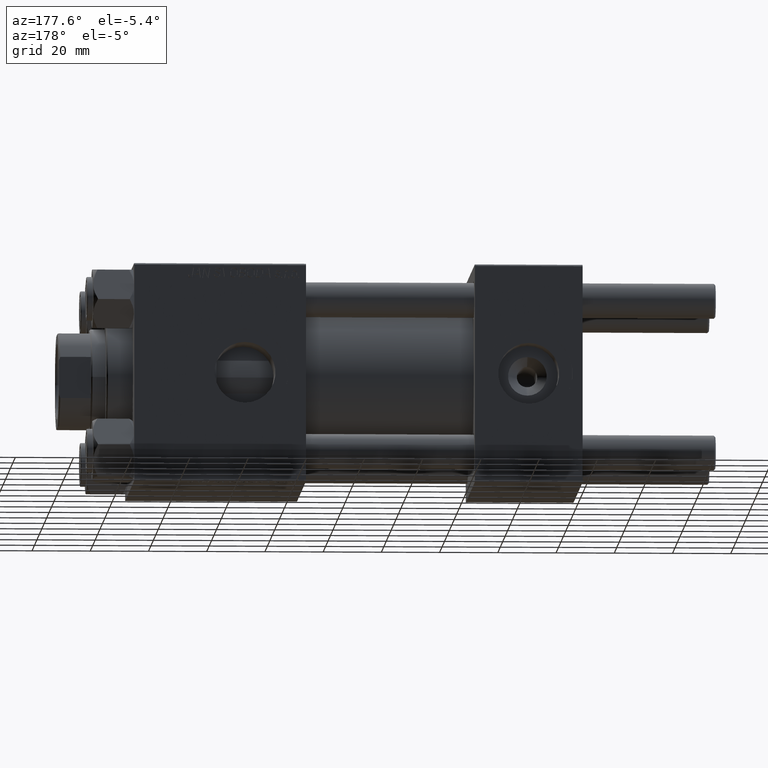
[diagram: clean part render]
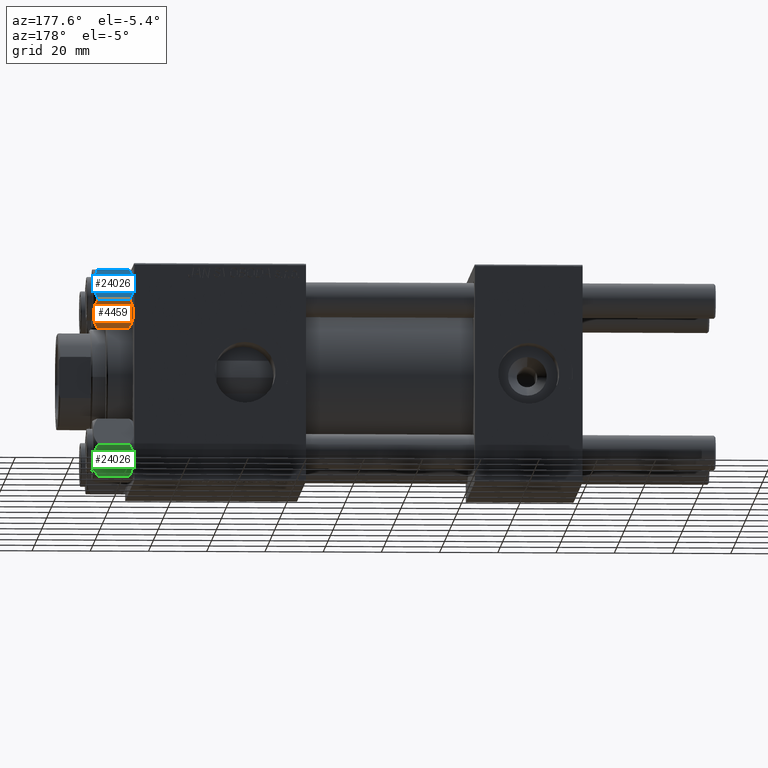
[diagram: same view with three faces highlighted in distinct colors, each labeled with its STEP entity id]
A machine part, auxiliary view with three faces highlighted in distinct colors.
Their STEP definitions:

[orange] entity #4459 — the highlighted planar face has unit normal (-0, -0.8135, 0.5816).
#25 = CARTESIAN_POINT ( 'NONE',  ( 8.714999999999994529, 5.031607595987588333, 0.000000000000000000 ) ) ;
#51 = CARTESIAN_POINT ( 'NONE',  ( 7.713000053756304375, 6.767122412062953174, -0.1545239700039927888 ) ) ;
#658 = CARTESIAN_POINT ( 'NONE',  ( 10.69859855102500923, 1.595914123792269601, -0.7141438259524722776 ) ) ;
#1017 = EDGE_CURVE ( 'NONE', #31180, #8453, #45835, .T. ) ;
#1173 = CARTESIAN_POINT ( 'NONE',  ( 11.61999999999999922, 7.247075248837498561E-15, -1.556784808024820999 ) ) ;
#1996 = B_SPLINE_CURVE_WITH_KNOTS ( 'NONE', 3,
 ( #1173, #17159, #658, #24233, #49117, #4339, #45177, #4603 ),
 .UNSPECIFIED., .F., .F.,
 ( 4, 2, 2, 4 ),
 ( 2.544312114899127210E-07, 0.003011550106433536454, 0.004517197944044559245, 0.006022845781655580301 ),
 .UNSPECIFIED. ) ;
#2161 = CARTESIAN_POINT ( 'NONE',  ( 11.61999999999999922, 7.017202701192663836E-15, -14.00000000000000000 ) ) ;
#2294 = VERTEX_POINT ( 'NONE', #25 ) ;
#3051 = EDGE_CURVE ( 'NONE', #30136, #45771, #33857, .T. ) ;
#3091 = CARTESIAN_POINT ( 'NONE',  ( 7.455303369716803630, 7.213466161761386886, -13.69973261901325223 ) ) ;
#3348 = CARTESIAN_POINT ( 'NONE',  ( 8.714999999999994529, 5.031607595987588333, -14.00000000000000000 ) ) ;
#3477 = CARTESIAN_POINT ( 'NONE',  ( 5.809999999999995168, 10.06321519197518377, -14.00000000000000000 ) ) ;
#4339 = CARTESIAN_POINT ( 'NONE',  ( 9.227666995912100489, 4.143642311704127223, -0.03994118060691630862 ) ) ;
#4459 = ADVANCED_FACE ( 'NONE', ( #31493 ), #47723, .F. ) ;
#4603 = CARTESIAN_POINT ( 'NONE',  ( 8.714999999999994529, 5.031607595987588333, 0.000000000000000000 ) ) ;
#4683 = CARTESIAN_POINT ( 'NONE',  ( 11.61999999999999922, 7.247075248837498561E-15, -1.556784808024820999 ) ) ;
#5190 = ORIENTED_EDGE ( 'NONE', *, *, #3051, .F. ) ;
#6502 = ORIENTED_EDGE ( 'NONE', *, *, #1017, .T. ) ;
#6629 = DIRECTION ( 'NONE',  ( -0.000000000000000000, -0.000000000000000000, 1.000000000000000000 ) ) ;
#7585 = EDGE_LOOP ( 'NONE', ( #37846, #6502, #35011, #10708, #5190, #36015 ) ) ;
#7922 = DIRECTION ( 'NONE',  ( 0.5000000000000002220, -0.8660254037844384856, 0.000000000000000000 ) ) ;
#8453 = VERTEX_POINT ( 'NONE', #29291 ) ;
#8782 = EDGE_CURVE ( 'NONE', #2294, #8453, #25719, .T. ) ;
#10708 = ORIENTED_EDGE ( 'NONE', *, *, #37559, .F. ) ;
#13301 = CARTESIAN_POINT ( 'NONE',  ( 8.714999999999994529, 5.031607595987588333, -14.00000000000000000 ) ) ;
#13802 = CARTESIAN_POINT ( 'NONE',  ( 9.220295946303428636, 4.156409344131457573, -13.99999999999999822 ) ) ;
#15298 = CARTESIAN_POINT ( 'NONE',  ( 11.61999999999999922, 7.035126978385350964E-15, -12.44321519197517922 ) ) ;
#17159 = CARTESIAN_POINT ( 'NONE',  ( 11.16445427487471775, 0.7890283410878045078, -1.101239082899540200 ) ) ;
#17801 = CARTESIAN_POINT ( 'NONE',  ( 5.809999999999995168, 10.06321519197518377, -14.00000000000000000 ) ) ;
#19020 = CARTESIAN_POINT ( 'NONE',  ( 8.714999999999994529, 5.031607595987588333, -14.00000000000000000 ) ) ;
#19047 = CARTESIAN_POINT ( 'NONE',  ( 8.460569896449612770, 5.472293462311864864, -13.99999999999998934 ) ) ;
#21400 = CARTESIAN_POINT ( 'NONE',  ( 9.716999946243698005, 3.296092779912230153, -13.84547602999601068 ) ) ;
#23250 = CARTESIAN_POINT ( 'NONE',  ( 8.202333004087895674, 5.919572880271055659, -13.96005881939308502 ) ) ;
#24215 = VERTEX_POINT ( 'NONE', #19020 ) ;
#24233 = CARTESIAN_POINT ( 'NONE',  ( 9.974696630283194310, 2.849749030213796885, -0.3002673809867452137 ) ) ;
#25324 = CARTESIAN_POINT ( 'NONE',  ( 11.16498164529021864, 0.7881149087337363524, -12.89823354668503974 ) ) ;
#25719 = B_SPLINE_CURVE_WITH_KNOTS ( 'NONE', 3,
 ( #51670, #32005, #51, #38844, #27059, #47727 ),
 .UNSPECIFIED., .F., .F.,
 ( 4, 2, 4 ),
 ( 0.006022845781655580301, 0.009013049135303631554, 0.01200325248895168020 ),
 .UNSPECIFIED. ) ;
#26107 = VECTOR ( 'NONE', #45578, 1000.000000000000000 ) ;
#26220 = CARTESIAN_POINT ( 'NONE',  ( 5.809999999999994280, 10.06321519197518377, -12.44321519197517389 ) ) ;
#26592 = EDGE_CURVE ( 'NONE', #31180, #24215, #42378, .T. ) ;
#27059 = CARTESIAN_POINT ( 'NONE',  ( 6.265018354709772197, 9.275100283241449972, -1.101766453314962924 ) ) ;
#28733 = EDGE_CURVE ( 'NONE', #24215, #30136, #45888, .T. ) ;
#29291 = CARTESIAN_POINT ( 'NONE',  ( 5.809999999999995168, 10.06321519197518377, -1.556784808024826106 ) ) ;
#30136 = VERTEX_POINT ( 'NONE', #15298 ) ;
#30844 = CARTESIAN_POINT ( 'NONE',  ( 7.700834831386342394, 6.788193195293096949, -13.80960203119265017 ) ) ;
#31180 = VERTEX_POINT ( 'NONE', #26220 ) ;
#31493 = FACE_OUTER_BOUND ( 'NONE', #7585, .T. ) ;
#32005 = CARTESIAN_POINT ( 'NONE',  ( 8.209704053696574633, 5.906805847843728863, -5.031375706690544014E-15 ) ) ;
#32934 = CARTESIAN_POINT ( 'NONE',  ( 10.69662495661650148, 1.599332489581338113, -13.28854452935654074 ) ) ;
#33694 = CARTESIAN_POINT ( 'NONE',  ( 11.61999999999999922, 7.035126978385350964E-15, -12.44321519197517922 ) ) ;
#33857 = LINE ( 'NONE', #2161, #36180 ) ;
#35011 = ORIENTED_EDGE ( 'NONE', *, *, #8782, .F. ) ;
#35426 = DIRECTION ( 'NONE',  ( -0.8660254037844385966, -0.5000000000000003331, 0.000000000000000000 ) ) ;
#36015 = ORIENTED_EDGE ( 'NONE', *, *, #28733, .F. ) ;
#36180 = VECTOR ( 'NONE', #6629, 1000.000000000000000 ) ;
#37559 = EDGE_CURVE ( 'NONE', #45771, #2294, #1996, .T. ) ;
#37846 = ORIENTED_EDGE ( 'NONE', *, *, #26592, .F. ) ;
#38844 = CARTESIAN_POINT ( 'NONE',  ( 6.733375043383494685, 8.463882702393844326, -0.7114554706434600417 ) ) ;
#39728 = CARTESIAN_POINT ( 'NONE',  ( 6.731401448974984270, 8.467301068182921497, -13.28585617404752384 ) ) ;
#42378 = B_SPLINE_CURVE_WITH_KNOTS ( 'NONE', 3,
 ( #47074, #43407, #39728, #3091, #30844, #23250, #19047, #3348 ),
 .UNSPECIFIED., .F., .F.,
 ( 4, 2, 2, 4 ),
 ( 2.544312114902182352E-07, 0.003011550106433543827, 0.004517197944044569653, 0.006022845781655595046 ),
 .UNSPECIFIED. ) ;
#43407 = CARTESIAN_POINT ( 'NONE',  ( 6.265545725125281074, 9.274186850887387479, -12.89876091710045891 ) ) ;
#43643 = AXIS2_PLACEMENT_3D ( 'NONE', #3477, #35426, #7922 ) ;
#45177 = CARTESIAN_POINT ( 'NONE',  ( 8.969430103550385169, 4.590921729663316242, -5.293955920339376330E-15 ) ) ;
#45578 = DIRECTION ( 'NONE',  ( -0.000000000000000000, -0.000000000000000000, 1.000000000000000000 ) ) ;
#45771 = VERTEX_POINT ( 'NONE', #4683 ) ;
#45835 = LINE ( 'NONE', #17801, #26107 ) ;
#45888 = B_SPLINE_CURVE_WITH_KNOTS ( 'NONE', 3,
 ( #13301, #13802, #21400, #32934, #25324, #33694 ),
 .UNSPECIFIED., .F., .F.,
 ( 4, 2, 4 ),
 ( 0.006022845781655595046, 0.009013049135303638493, 0.01200325248895168194 ),
 .UNSPECIFIED. ) ;
#47074 = CARTESIAN_POINT ( 'NONE',  ( 5.809999999999994280, 10.06321519197518377, -12.44321519197517389 ) ) ;
#47723 = PLANE ( 'NONE',  #43643 ) ;
#47727 = CARTESIAN_POINT ( 'NONE',  ( 5.809999999999995168, 10.06321519197518377, -1.556784808024826106 ) ) ;
#49117 = CARTESIAN_POINT ( 'NONE',  ( 9.729165168613654657, 3.275021996682086378, -0.1903979688073500487 ) ) ;
#51670 = CARTESIAN_POINT ( 'NONE',  ( 8.714999999999994529, 5.031607595987588333, 0.000000000000000000 ) ) ;

[blue] entity #24026 — the highlighted planar face has unit normal (-0, -0.9104, -0.4137).
#108 = ORIENTED_EDGE ( 'NONE', *, *, #51187, .T. ) ;
#723 = EDGE_CURVE ( 'NONE', #45106, #8109, #41818, .T. ) ;
#1017 = EDGE_CURVE ( 'NONE', #31180, #8453, #45835, .T. ) ;
#1743 = DIRECTION ( 'NONE',  ( 5.971509383741162381E-16, -1.000000000000000000, 0.000000000000000000 ) ) ;
#1910 = VERTEX_POINT ( 'NONE', #18192 ) ;
#2529 = CARTESIAN_POINT ( 'NONE',  ( 3.474497094393246055, 10.06321519197518199, -0.5726960901042849050 ) ) ;
#2951 = CARTESIAN_POINT ( 'NONE',  ( -3.958929922320423067, 10.06321519197517489, -13.25786014976459626 ) ) ;
#5374 = CARTESIAN_POINT ( 'NONE',  ( -5.810000000000004050, 10.06321519197517667, -12.44321519197517745 ) ) ;
#5428 = CARTESIAN_POINT ( 'NONE',  ( 3.958929922320414185, 10.06321519197518377, -0.7421398502354088489 ) ) ;
#5779 = ORIENTED_EDGE ( 'NONE', *, *, #31705, .F. ) ;
#6093 = CARTESIAN_POINT ( 'NONE',  ( -3.474497094393259378, 10.06321519197517844, -13.42730390989571809 ) ) ;
#6366 = CARTESIAN_POINT ( 'NONE',  ( -1.020132157807628781, 10.06321519197518022, -13.99999999999999467 ) ) ;
#6628 = CARTESIAN_POINT ( 'NONE',  ( -2.013954290287971460, 10.06321519197518022, -13.84298883202399466 ) ) ;
#7144 = CARTESIAN_POINT ( 'NONE',  ( -5.359707691559678189, 10.06321519197518022, -12.66836134619534171 ) ) ;
#7891 = EDGE_CURVE ( 'NONE', #8109, #31180, #34536, .T. ) ;
#8109 = VERTEX_POINT ( 'NONE', #46369 ) ;
#8453 = VERTEX_POINT ( 'NONE', #29291 ) ;
#9148 = CARTESIAN_POINT ( 'NONE',  ( -3.960942496020607884, 10.06321519197517844, -0.7115728323610508443 ) ) ;
#13801 = CARTESIAN_POINT ( 'NONE',  ( 4.900668367960789418, 10.06321519197518732, -1.121556683709783231 ) ) ;
#14070 = DIRECTION ( 'NONE',  ( 1.000000000000000000, 5.971509383741162381E-16, 0.000000000000000000 ) ) ;
#14750 = CARTESIAN_POINT ( 'NONE',  ( 1.018274738099081977, 10.06321519197517844, -13.95177257919928415 ) ) ;
#15777 = CARTESIAN_POINT ( 'NONE',  ( 2.508586450168036386, 10.06321519197518199, -13.70242473679676287 ) ) ;
#17001 = CARTESIAN_POINT ( 'NONE',  ( -6.009258394948640858E-15, 10.06321519197518022, 0.000000000000000000 ) ) ;
#17801 = CARTESIAN_POINT ( 'NONE',  ( 5.809999999999995168, 10.06321519197518377, -14.00000000000000000 ) ) ;
#18005 = EDGE_LOOP ( 'NONE', ( #42755, #108, #36836, #5779, #36454, #21269 ) ) ;
#18085 = VERTEX_POINT ( 'NONE', #25344 ) ;
#18192 = CARTESIAN_POINT ( 'NONE',  ( -5.810000000000003162, 10.06321519197517667, -1.556784808024824107 ) ) ;
#18492 = CARTESIAN_POINT ( 'NONE',  ( -6.009258394948640858E-15, 10.06321519197518022, 0.000000000000000000 ) ) ;
#18926 = CARTESIAN_POINT ( 'NONE',  ( -6.009258394948640858E-15, 10.06321519197518022, -14.00000000000000000 ) ) ;
#19986 = CARTESIAN_POINT ( 'NONE',  ( -5.810000000000003162, 10.06321519197517667, -14.00000000000000000 ) ) ;
#20397 = CARTESIAN_POINT ( 'NONE',  ( -0.2543996698847555971, 10.06321519197517844, -8.687169907040107433E-15 ) ) ;
#20925 = CARTESIAN_POINT ( 'NONE',  ( -2.508586450168046156, 10.06321519197518022, -0.2975752632032391820 ) ) ;
#21129 = B_SPLINE_CURVE_WITH_KNOTS ( 'NONE', 3,
 ( #17001, #20397, #48180, #40832, #36392, #20925, #9148, #24332, #48442 ),
 .UNSPECIFIED., .F., .F.,
 ( 4, 2, 1, 2, 4 ),
 ( 0.02074012592819901926, 0.02149589804477578317, 0.02225167016135255055, 0.02376321439450607836, 0.02678630286081313747 ),
 .UNSPECIFIED. ) ;
#21269 = ORIENTED_EDGE ( 'NONE', *, *, #7891, .F. ) ;
#23624 = CARTESIAN_POINT ( 'NONE',  ( 0.5112014849988854026, 10.06321519197518022, -13.99019602057108003 ) ) ;
#24026 = ADVANCED_FACE ( 'NONE', ( #33965 ), #50729, .F. ) ;
#24219 = VECTOR ( 'NONE', #32307, 1000.000000000000000 ) ;
#24332 = CARTESIAN_POINT ( 'NONE',  ( -4.908816193182384602, 10.06321519197518022, -1.106192904616017048 ) ) ;
#25344 = CARTESIAN_POINT ( 'NONE',  ( -6.009258394948640858E-15, 10.06321519197518022, 0.000000000000000000 ) ) ;
#26107 = VECTOR ( 'NONE', #45578, 1000.000000000000000 ) ;
#26220 = CARTESIAN_POINT ( 'NONE',  ( 5.809999999999994280, 10.06321519197518377, -12.44321519197517389 ) ) ;
#26308 = B_SPLINE_CURVE_WITH_KNOTS ( 'NONE', 3,
 ( #38146, #46260, #13801, #5428, #2529, #49678, #37376, #18492 ),
 .UNSPECIFIED., .F., .F.,
 ( 4, 2, 2, 4 ),
 ( 0.01467889604968878464, 0.01619420351931634416, 0.01770951098894390369, 0.02074012592819901926 ),
 .UNSPECIFIED. ) ;
#26396 = EDGE_CURVE ( 'NONE', #18085, #1910, #21129, .T. ) ;
#26522 = CARTESIAN_POINT ( 'NONE',  ( -5.810000000000004050, 10.06321519197517667, -12.44321519197517745 ) ) ;
#29291 = CARTESIAN_POINT ( 'NONE',  ( 5.809999999999995168, 10.06321519197518377, -1.556784808024826106 ) ) ;
#30721 = CARTESIAN_POINT ( 'NONE',  ( 1.772424303831120707, 10.06321519197518022, -13.86611290782775541 ) ) ;
#31180 = VERTEX_POINT ( 'NONE', #26220 ) ;
#31705 = EDGE_CURVE ( 'NONE', #8453, #18085, #26308, .T. ) ;
#31746 = CARTESIAN_POINT ( 'NONE',  ( 5.809999999999994280, 10.06321519197518377, -12.44321519197517389 ) ) ;
#32307 = DIRECTION ( 'NONE',  ( -0.000000000000000000, -0.000000000000000000, 1.000000000000000000 ) ) ;
#33856 = CARTESIAN_POINT ( 'NONE',  ( -4.900668367960797411, 10.06321519197517667, -12.87844331629021966 ) ) ;
#33965 = FACE_OUTER_BOUND ( 'NONE', #18005, .T. ) ;
#34536 = B_SPLINE_CURVE_WITH_KNOTS ( 'NONE', 3,
 ( #18926, #43022, #23624, #14750, #30721, #15777, #35417, #34911, #31746 ),
 .UNSPECIFIED., .F., .F.,
 ( 4, 2, 1, 2, 4 ),
 ( 0.02074012592819902273, 0.02149589804477578664, 0.02225167016135255055, 0.02376321439450608183, 0.02678630286081314094 ),
 .UNSPECIFIED. ) ;
#34911 = CARTESIAN_POINT ( 'NONE',  ( 4.908816193182378385, 10.06321519197518199, -12.89380709538398406 ) ) ;
#35417 = CARTESIAN_POINT ( 'NONE',  ( 3.960942496020599002, 10.06321519197518199, -13.28842716763894671 ) ) ;
#36392 = CARTESIAN_POINT ( 'NONE',  ( -1.772424303831134917, 10.06321519197518022, -0.1338870921722490892 ) ) ;
#36454 = ORIENTED_EDGE ( 'NONE', *, *, #1017, .F. ) ;
#36836 = ORIENTED_EDGE ( 'NONE', *, *, #26396, .F. ) ;
#37376 = CARTESIAN_POINT ( 'NONE',  ( 1.020132157807618345, 10.06321519197518022, -8.626183534837794653E-15 ) ) ;
#38146 = CARTESIAN_POINT ( 'NONE',  ( 5.809999999999995168, 10.06321519197518377, -1.556784808024826106 ) ) ;
#40832 = CARTESIAN_POINT ( 'NONE',  ( -1.018274738099091303, 10.06321519197518022, -0.04822742080071992093 ) ) ;
#41090 = AXIS2_PLACEMENT_3D ( 'NONE', #49951, #1743, #14070 ) ;
#41818 = B_SPLINE_CURVE_WITH_KNOTS ( 'NONE', 3,
 ( #26522, #7144, #33856, #2951, #6093, #6628, #6366, #42749 ),
 .UNSPECIFIED., .F., .F.,
 ( 4, 2, 2, 4 ),
 ( 0.01467889604968878811, 0.01619420351931634763, 0.01770951098894390716, 0.02074012592819902273 ),
 .UNSPECIFIED. ) ;
#42749 = CARTESIAN_POINT ( 'NONE',  ( -6.009258394948640858E-15, 10.06321519197518022, -14.00000000000000000 ) ) ;
#42755 = ORIENTED_EDGE ( 'NONE', *, *, #723, .F. ) ;
#43022 = CARTESIAN_POINT ( 'NONE',  ( 0.2543996698847451055, 10.06321519197518199, -13.99999999999999289 ) ) ;
#45106 = VERTEX_POINT ( 'NONE', #5374 ) ;
#45578 = DIRECTION ( 'NONE',  ( -0.000000000000000000, -0.000000000000000000, 1.000000000000000000 ) ) ;
#45835 = LINE ( 'NONE', #17801, #26107 ) ;
#46260 = CARTESIAN_POINT ( 'NONE',  ( 5.359707691559670195, 10.06321519197518199, -1.331638653804663619 ) ) ;
#46369 = CARTESIAN_POINT ( 'NONE',  ( -6.009258394948640858E-15, 10.06321519197518022, -14.00000000000000000 ) ) ;
#48180 = CARTESIAN_POINT ( 'NONE',  ( -0.5112014849988953946, 10.06321519197518199, -0.009803979428924322267 ) ) ;
#48442 = CARTESIAN_POINT ( 'NONE',  ( -5.810000000000003162, 10.06321519197517667, -1.556784808024824107 ) ) ;
#49678 = CARTESIAN_POINT ( 'NONE',  ( 2.013954290287958138, 10.06321519197518377, -0.1570111679760076706 ) ) ;
#49951 = CARTESIAN_POINT ( 'NONE',  ( -5.810000000000003162, 10.06321519197517667, -14.00000000000000000 ) ) ;
#50729 = PLANE ( 'NONE',  #41090 ) ;
#51187 = EDGE_CURVE ( 'NONE', #45106, #1910, #51699, .T. ) ;
#51699 = LINE ( 'NONE', #19986, #24219 ) ;

[green] entity #24026 — the highlighted planar face has unit normal (-0, -0.9104, 0.4137).
#108 = ORIENTED_EDGE ( 'NONE', *, *, #51187, .T. ) ;
#723 = EDGE_CURVE ( 'NONE', #45106, #8109, #41818, .T. ) ;
#1017 = EDGE_CURVE ( 'NONE', #31180, #8453, #45835, .T. ) ;
#1743 = DIRECTION ( 'NONE',  ( 5.971509383741162381E-16, -1.000000000000000000, 0.000000000000000000 ) ) ;
#1910 = VERTEX_POINT ( 'NONE', #18192 ) ;
#2529 = CARTESIAN_POINT ( 'NONE',  ( 3.474497094393246055, 10.06321519197518199, -0.5726960901042849050 ) ) ;
#2951 = CARTESIAN_POINT ( 'NONE',  ( -3.958929922320423067, 10.06321519197517489, -13.25786014976459626 ) ) ;
#5374 = CARTESIAN_POINT ( 'NONE',  ( -5.810000000000004050, 10.06321519197517667, -12.44321519197517745 ) ) ;
#5428 = CARTESIAN_POINT ( 'NONE',  ( 3.958929922320414185, 10.06321519197518377, -0.7421398502354088489 ) ) ;
#5779 = ORIENTED_EDGE ( 'NONE', *, *, #31705, .F. ) ;
#6093 = CARTESIAN_POINT ( 'NONE',  ( -3.474497094393259378, 10.06321519197517844, -13.42730390989571809 ) ) ;
#6366 = CARTESIAN_POINT ( 'NONE',  ( -1.020132157807628781, 10.06321519197518022, -13.99999999999999467 ) ) ;
#6628 = CARTESIAN_POINT ( 'NONE',  ( -2.013954290287971460, 10.06321519197518022, -13.84298883202399466 ) ) ;
#7144 = CARTESIAN_POINT ( 'NONE',  ( -5.359707691559678189, 10.06321519197518022, -12.66836134619534171 ) ) ;
#7891 = EDGE_CURVE ( 'NONE', #8109, #31180, #34536, .T. ) ;
#8109 = VERTEX_POINT ( 'NONE', #46369 ) ;
#8453 = VERTEX_POINT ( 'NONE', #29291 ) ;
#9148 = CARTESIAN_POINT ( 'NONE',  ( -3.960942496020607884, 10.06321519197517844, -0.7115728323610508443 ) ) ;
#13801 = CARTESIAN_POINT ( 'NONE',  ( 4.900668367960789418, 10.06321519197518732, -1.121556683709783231 ) ) ;
#14070 = DIRECTION ( 'NONE',  ( 1.000000000000000000, 5.971509383741162381E-16, 0.000000000000000000 ) ) ;
#14750 = CARTESIAN_POINT ( 'NONE',  ( 1.018274738099081977, 10.06321519197517844, -13.95177257919928415 ) ) ;
#15777 = CARTESIAN_POINT ( 'NONE',  ( 2.508586450168036386, 10.06321519197518199, -13.70242473679676287 ) ) ;
#17001 = CARTESIAN_POINT ( 'NONE',  ( -6.009258394948640858E-15, 10.06321519197518022, 0.000000000000000000 ) ) ;
#17801 = CARTESIAN_POINT ( 'NONE',  ( 5.809999999999995168, 10.06321519197518377, -14.00000000000000000 ) ) ;
#18005 = EDGE_LOOP ( 'NONE', ( #42755, #108, #36836, #5779, #36454, #21269 ) ) ;
#18085 = VERTEX_POINT ( 'NONE', #25344 ) ;
#18192 = CARTESIAN_POINT ( 'NONE',  ( -5.810000000000003162, 10.06321519197517667, -1.556784808024824107 ) ) ;
#18492 = CARTESIAN_POINT ( 'NONE',  ( -6.009258394948640858E-15, 10.06321519197518022, 0.000000000000000000 ) ) ;
#18926 = CARTESIAN_POINT ( 'NONE',  ( -6.009258394948640858E-15, 10.06321519197518022, -14.00000000000000000 ) ) ;
#19986 = CARTESIAN_POINT ( 'NONE',  ( -5.810000000000003162, 10.06321519197517667, -14.00000000000000000 ) ) ;
#20397 = CARTESIAN_POINT ( 'NONE',  ( -0.2543996698847555971, 10.06321519197517844, -8.687169907040107433E-15 ) ) ;
#20925 = CARTESIAN_POINT ( 'NONE',  ( -2.508586450168046156, 10.06321519197518022, -0.2975752632032391820 ) ) ;
#21129 = B_SPLINE_CURVE_WITH_KNOTS ( 'NONE', 3,
 ( #17001, #20397, #48180, #40832, #36392, #20925, #9148, #24332, #48442 ),
 .UNSPECIFIED., .F., .F.,
 ( 4, 2, 1, 2, 4 ),
 ( 0.02074012592819901926, 0.02149589804477578317, 0.02225167016135255055, 0.02376321439450607836, 0.02678630286081313747 ),
 .UNSPECIFIED. ) ;
#21269 = ORIENTED_EDGE ( 'NONE', *, *, #7891, .F. ) ;
#23624 = CARTESIAN_POINT ( 'NONE',  ( 0.5112014849988854026, 10.06321519197518022, -13.99019602057108003 ) ) ;
#24026 = ADVANCED_FACE ( 'NONE', ( #33965 ), #50729, .F. ) ;
#24219 = VECTOR ( 'NONE', #32307, 1000.000000000000000 ) ;
#24332 = CARTESIAN_POINT ( 'NONE',  ( -4.908816193182384602, 10.06321519197518022, -1.106192904616017048 ) ) ;
#25344 = CARTESIAN_POINT ( 'NONE',  ( -6.009258394948640858E-15, 10.06321519197518022, 0.000000000000000000 ) ) ;
#26107 = VECTOR ( 'NONE', #45578, 1000.000000000000000 ) ;
#26220 = CARTESIAN_POINT ( 'NONE',  ( 5.809999999999994280, 10.06321519197518377, -12.44321519197517389 ) ) ;
#26308 = B_SPLINE_CURVE_WITH_KNOTS ( 'NONE', 3,
 ( #38146, #46260, #13801, #5428, #2529, #49678, #37376, #18492 ),
 .UNSPECIFIED., .F., .F.,
 ( 4, 2, 2, 4 ),
 ( 0.01467889604968878464, 0.01619420351931634416, 0.01770951098894390369, 0.02074012592819901926 ),
 .UNSPECIFIED. ) ;
#26396 = EDGE_CURVE ( 'NONE', #18085, #1910, #21129, .T. ) ;
#26522 = CARTESIAN_POINT ( 'NONE',  ( -5.810000000000004050, 10.06321519197517667, -12.44321519197517745 ) ) ;
#29291 = CARTESIAN_POINT ( 'NONE',  ( 5.809999999999995168, 10.06321519197518377, -1.556784808024826106 ) ) ;
#30721 = CARTESIAN_POINT ( 'NONE',  ( 1.772424303831120707, 10.06321519197518022, -13.86611290782775541 ) ) ;
#31180 = VERTEX_POINT ( 'NONE', #26220 ) ;
#31705 = EDGE_CURVE ( 'NONE', #8453, #18085, #26308, .T. ) ;
#31746 = CARTESIAN_POINT ( 'NONE',  ( 5.809999999999994280, 10.06321519197518377, -12.44321519197517389 ) ) ;
#32307 = DIRECTION ( 'NONE',  ( -0.000000000000000000, -0.000000000000000000, 1.000000000000000000 ) ) ;
#33856 = CARTESIAN_POINT ( 'NONE',  ( -4.900668367960797411, 10.06321519197517667, -12.87844331629021966 ) ) ;
#33965 = FACE_OUTER_BOUND ( 'NONE', #18005, .T. ) ;
#34536 = B_SPLINE_CURVE_WITH_KNOTS ( 'NONE', 3,
 ( #18926, #43022, #23624, #14750, #30721, #15777, #35417, #34911, #31746 ),
 .UNSPECIFIED., .F., .F.,
 ( 4, 2, 1, 2, 4 ),
 ( 0.02074012592819902273, 0.02149589804477578664, 0.02225167016135255055, 0.02376321439450608183, 0.02678630286081314094 ),
 .UNSPECIFIED. ) ;
#34911 = CARTESIAN_POINT ( 'NONE',  ( 4.908816193182378385, 10.06321519197518199, -12.89380709538398406 ) ) ;
#35417 = CARTESIAN_POINT ( 'NONE',  ( 3.960942496020599002, 10.06321519197518199, -13.28842716763894671 ) ) ;
#36392 = CARTESIAN_POINT ( 'NONE',  ( -1.772424303831134917, 10.06321519197518022, -0.1338870921722490892 ) ) ;
#36454 = ORIENTED_EDGE ( 'NONE', *, *, #1017, .F. ) ;
#36836 = ORIENTED_EDGE ( 'NONE', *, *, #26396, .F. ) ;
#37376 = CARTESIAN_POINT ( 'NONE',  ( 1.020132157807618345, 10.06321519197518022, -8.626183534837794653E-15 ) ) ;
#38146 = CARTESIAN_POINT ( 'NONE',  ( 5.809999999999995168, 10.06321519197518377, -1.556784808024826106 ) ) ;
#40832 = CARTESIAN_POINT ( 'NONE',  ( -1.018274738099091303, 10.06321519197518022, -0.04822742080071992093 ) ) ;
#41090 = AXIS2_PLACEMENT_3D ( 'NONE', #49951, #1743, #14070 ) ;
#41818 = B_SPLINE_CURVE_WITH_KNOTS ( 'NONE', 3,
 ( #26522, #7144, #33856, #2951, #6093, #6628, #6366, #42749 ),
 .UNSPECIFIED., .F., .F.,
 ( 4, 2, 2, 4 ),
 ( 0.01467889604968878811, 0.01619420351931634763, 0.01770951098894390716, 0.02074012592819902273 ),
 .UNSPECIFIED. ) ;
#42749 = CARTESIAN_POINT ( 'NONE',  ( -6.009258394948640858E-15, 10.06321519197518022, -14.00000000000000000 ) ) ;
#42755 = ORIENTED_EDGE ( 'NONE', *, *, #723, .F. ) ;
#43022 = CARTESIAN_POINT ( 'NONE',  ( 0.2543996698847451055, 10.06321519197518199, -13.99999999999999289 ) ) ;
#45106 = VERTEX_POINT ( 'NONE', #5374 ) ;
#45578 = DIRECTION ( 'NONE',  ( -0.000000000000000000, -0.000000000000000000, 1.000000000000000000 ) ) ;
#45835 = LINE ( 'NONE', #17801, #26107 ) ;
#46260 = CARTESIAN_POINT ( 'NONE',  ( 5.359707691559670195, 10.06321519197518199, -1.331638653804663619 ) ) ;
#46369 = CARTESIAN_POINT ( 'NONE',  ( -6.009258394948640858E-15, 10.06321519197518022, -14.00000000000000000 ) ) ;
#48180 = CARTESIAN_POINT ( 'NONE',  ( -0.5112014849988953946, 10.06321519197518199, -0.009803979428924322267 ) ) ;
#48442 = CARTESIAN_POINT ( 'NONE',  ( -5.810000000000003162, 10.06321519197517667, -1.556784808024824107 ) ) ;
#49678 = CARTESIAN_POINT ( 'NONE',  ( 2.013954290287958138, 10.06321519197518377, -0.1570111679760076706 ) ) ;
#49951 = CARTESIAN_POINT ( 'NONE',  ( -5.810000000000003162, 10.06321519197517667, -14.00000000000000000 ) ) ;
#50729 = PLANE ( 'NONE',  #41090 ) ;
#51187 = EDGE_CURVE ( 'NONE', #45106, #1910, #51699, .T. ) ;
#51699 = LINE ( 'NONE', #19986, #24219 ) ;